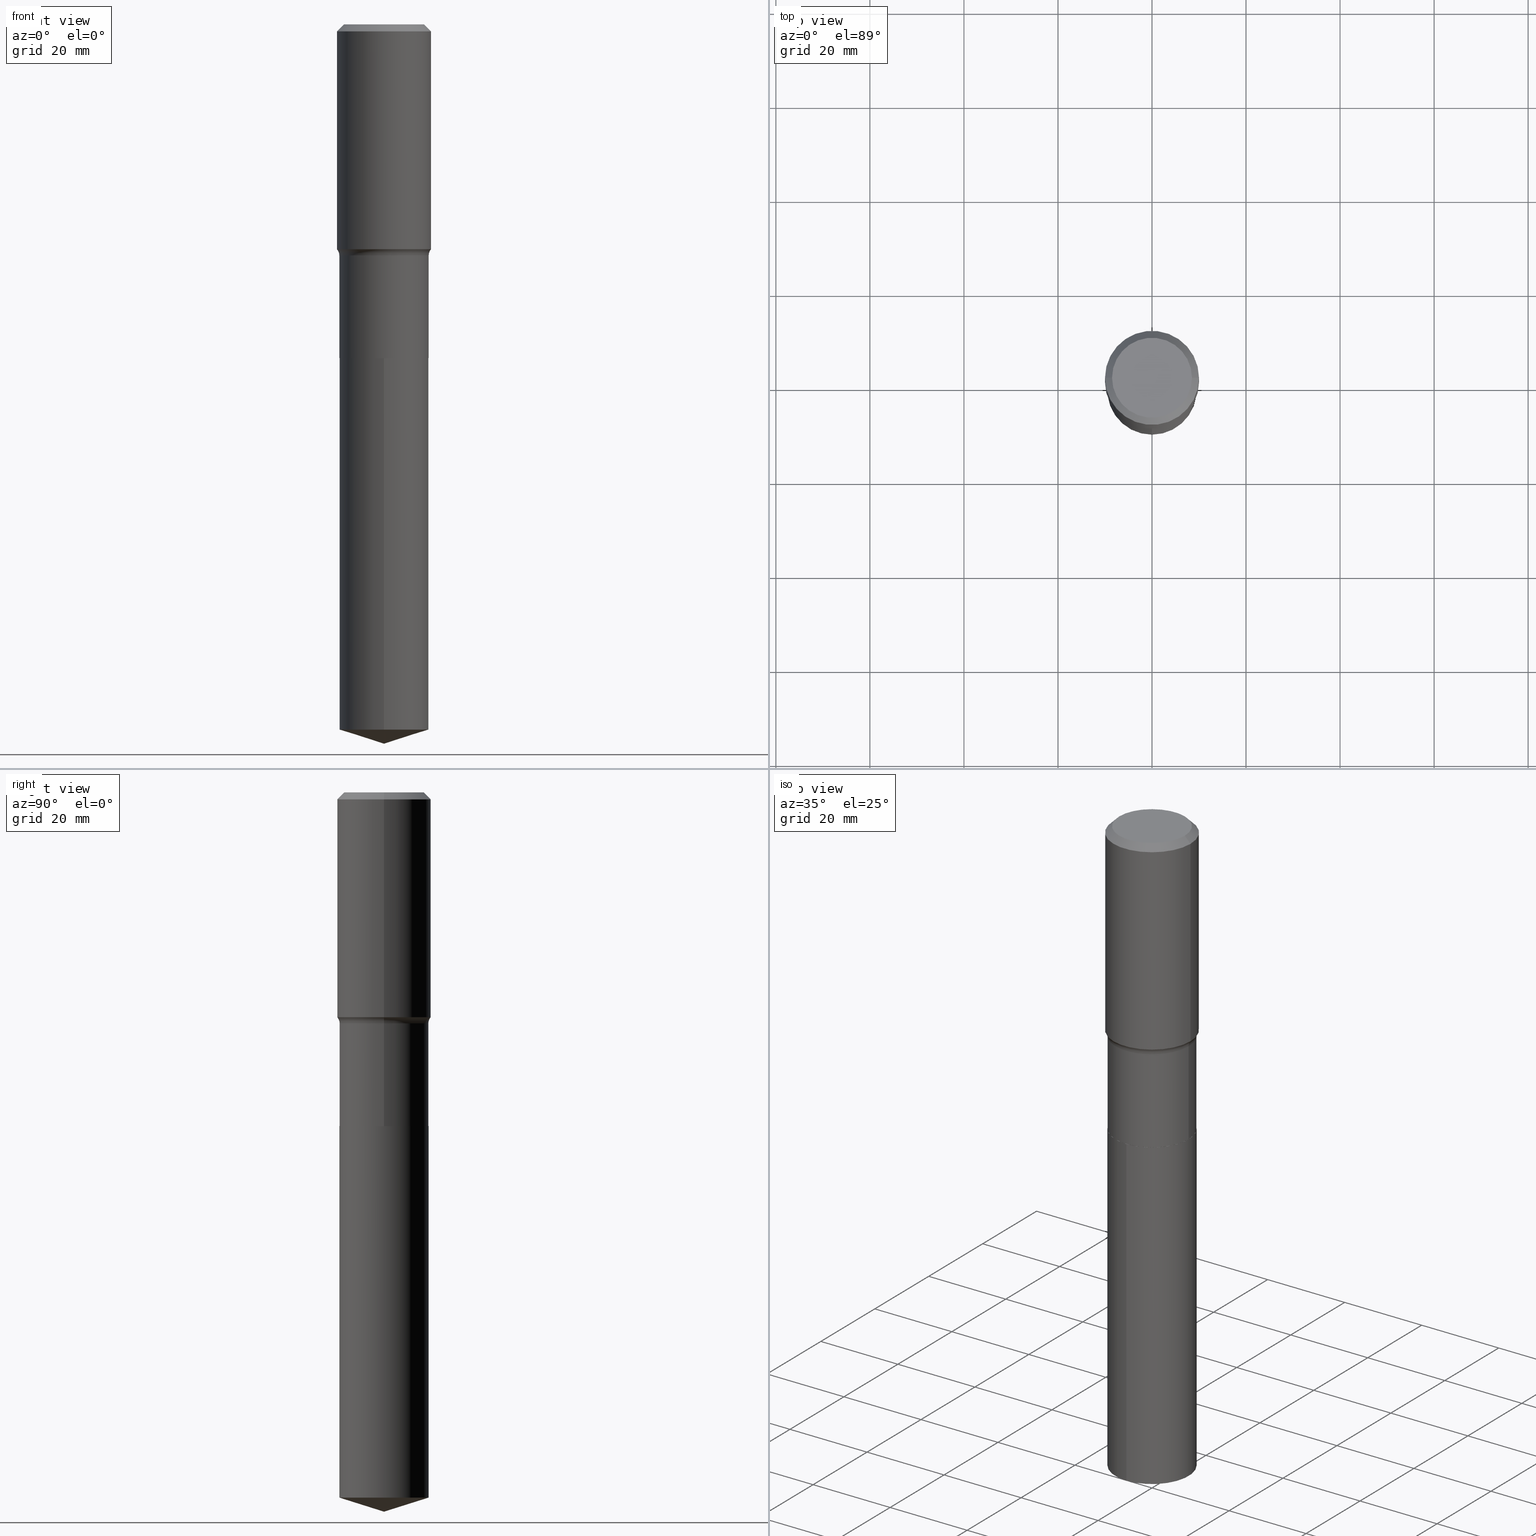
[diagram: canonical four-view strip — front | top / right | iso, engineering-drawing reading convention]
A machine part, canonical four-view strip (front | top / right | iso — engineering-drawing reading convention). The complete STEP part file that produces these views, byte-faithful:
ISO-10303-21;
HEADER;
FILE_DESCRIPTION (( 'STEP AP203' ),
    '1' );
FILE_NAME ('64210.STEP',
    '2024-04-19T15:37:57',
    ( '' ),
    ( '' ),
    'SwSTEP 2.0',
    'SolidWorks 2023',
    '' );
FILE_SCHEMA (( 'CONFIG_CONTROL_DESIGN' ));
ENDSEC;

DATA;
#1 = ORIENTED_EDGE ( 'NONE', *, *, #283, .T. ) ;
#2 = ADVANCED_FACE ( 'NONE', ( #413 ), #217, .T. ) ;
#3 = EDGE_CURVE ( 'NONE', #307, #82, #288, .T. ) ;
#4 = CARTESIAN_POINT ( 'NONE',  ( 4.605262722311822857E-29, -6.575094646373675115E-15, -1.883181952950732985 ) ) ;
#5 = ORIENTED_EDGE ( 'NONE', *, *, #34, .F. ) ;
#6 = PERSON_AND_ORGANIZATION ( #385, #102 ) ;
#7 = AXIS2_PLACEMENT_3D ( 'NONE', #421, #197, #308 ) ;
#8 = PRODUCT_DEFINITION_FORMATION_WITH_SPECIFIED_SOURCE ( 'ANY', '', #28, .NOT_KNOWN. ) ;
#9 = ORIENTED_EDGE ( 'NONE', *, *, #463, .F. ) ;
#10 = DIRECTION ( 'NONE',  ( -0.7071067811867889352, 7.493145998871226640E-15, 0.7071067811863060992 ) ) ;
#11 = CALENDAR_DATE ( 2024, 19, 4 ) ;
#12 = ORIENTED_EDGE ( 'NONE', *, *, #449, .T. ) ;
#13 = APPROVAL_STATUS ( 'not_yet_approved' ) ;
#14 = FACE_OUTER_BOUND ( 'NONE', #139, .T. ) ;
#15 = ORIENTED_EDGE ( 'NONE', *, *, #34, .T. ) ;
#16 = CIRCLE ( 'NONE', #113, 0.3937000000000000499 ) ;
#17 = AXIS2_PLACEMENT_3D ( 'NONE', #111, #467, #56 ) ;
#18 = ORIENTED_EDGE ( 'NONE', *, *, #294, .F. ) ;
#19 = CARTESIAN_POINT ( 'NONE',  ( 1.444171603492640496E-30, -2.061894304653831246E-16, -0.05905500000000032945 ) ) ;
#20 = LINE ( 'NONE', #284, #118 ) ;
#21 = SECURITY_CLASSIFICATION_LEVEL ( 'unclassified' ) ;
#22 = CC_DESIGN_DATE_AND_TIME_ASSIGNMENT ( #38, #396, ( #40 ) ) ;
#23 = EDGE_CURVE ( 'NONE', #255, #348, #290, .T. ) ;
#24 =( LENGTH_UNIT ( ) NAMED_UNIT ( * ) SI_UNIT ( $, .METRE. ) );
#25 = DIRECTION ( 'NONE',  ( -2.445468806185136597E-29, 3.491481338843145583E-15, 1.000000000000000000 ) ) ;
#26 = VECTOR ( 'NONE', #114, 39.37007874015748143 ) ;
#27 = DIRECTION ( 'NONE',  ( -2.445468806185136597E-29, 3.491481338843145583E-15, 1.000000000000000000 ) ) ;
#28 = PRODUCT ( '64210', '64210', '', ( #350 ) ) ;
#29 = CIRCLE ( 'NONE', #436, 0.3346450000000000258 ) ;
#30 = EDGE_LOOP ( 'NONE', ( #237, #301, #461, #394 ) ) ;
#31 = DIRECTION ( 'NONE',  ( 1.000000000000000000, -6.982962677686267499E-15, 0.000000000000000000 ) ) ;
#32 = DIRECTION ( 'NONE',  ( -2.438088387897960049E-29, 3.491481338843145188E-15, 1.000000000000000000 ) ) ;
#33 = ORIENTED_EDGE ( 'NONE', *, *, #186, .T. ) ;
#34 = EDGE_CURVE ( 'NONE', #97, #82, #16, .T. ) ;
#35 = LINE ( 'NONE', #410, #236 ) ;
#36 = AXIS2_PLACEMENT_3D ( 'NONE', #321, #74, #251 ) ;
#37 = TOROIDAL_SURFACE ( 'NONE', #312, 0.4519999999999998463, 0.07799999999999999989 ) ;
#38 = DATE_AND_TIME ( #434, #165 ) ;
#39 = CARTESIAN_POINT ( 'NONE',  ( 0.3735000000000000542, -1.236752519845017793E-14, -2.795199999999999019 ) ) ;
#40 = PRODUCT_DEFINITION ( 'UNKNOWN', '', #8, #381 ) ;
#41 = EDGE_CURVE ( 'NONE', #199, #149, #345, .T. ) ;
#42 = DIRECTION ( 'NONE',  ( -2.445468806185136597E-29, 3.491481338843145583E-15, 1.000000000000000000 ) ) ;
#43 = DIRECTION ( 'NONE',  ( -6.982962677686266711E-15, -1.000000000000000000, 2.921762560068730595E-15 ) ) ;
#44 = CIRCLE ( 'NONE', #202, 0.3739999999999998881 ) ;
#45 = CIRCLE ( 'NONE', #204, 0.07799999999999995826 ) ;
#46 = DIRECTION ( 'NONE',  ( -2.445468806185136597E-29, 3.491481338843145583E-15, 1.000000000000000000 ) ) ;
#47 = PERSON_AND_ORGANIZATION_ROLE ( 'design_owner' ) ;
#48 = CC_DESIGN_PERSON_AND_ORGANIZATION_ASSIGNMENT ( #281, #173, ( #325 ) ) ;
#49 = CARTESIAN_POINT ( 'NONE',  ( 6.835574407048694043E-29, -9.759388638334360093E-15, -2.795199999999999907 ) ) ;
#50 = LINE ( 'NONE', #432, #491 ) ;
#51 = ORIENTED_EDGE ( 'NONE', *, *, #298, .T. ) ;
#52 = EDGE_LOOP ( 'NONE', ( #201, #71, #414, #18 ) ) ;
#53 = APPROVAL_PERSON_ORGANIZATION ( #244, #68, #207 ) ;
#54 = AXIS2_PLACEMENT_3D ( 'NONE', #59, #242, #142 ) ;
#55 = CARTESIAN_POINT ( 'NONE',  ( 0.000000000000000000, 0.000000000000000000, 0.000000000000000000 ) ) ;
#56 = DIRECTION ( 'NONE',  ( 1.000000000000000000, -6.982962677686265922E-15, 0.000000000000000000 ) ) ;
#57 = PERSON_AND_ORGANIZATION ( #385, #102 ) ;
#58 = ORIENTED_EDGE ( 'NONE', *, *, #23, .F. ) ;
#59 = CARTESIAN_POINT ( 'NONE',  ( -8.153525768971819026E-28, 1.164465316690767044E-13, 33.34647874015747959 ) ) ;
#60 = CARTESIAN_POINT ( 'NONE',  ( -0.3735000000000000542, -7.102862293096273524E-15, -2.795199999999999019 ) ) ;
#61 = ORIENTED_EDGE ( 'NONE', *, *, #116, .F. ) ;
#62 = CARTESIAN_POINT ( 'NONE',  ( 0.3937000000000002164, -9.324287052578759121E-15, -1.883181952950732985 ) ) ;
#63 = EDGE_LOOP ( 'NONE', ( #250, #92, #190, #192 ) ) ;
#64 = AXIS2_PLACEMENT_3D ( 'NONE', #137, #362, #212 ) ;
#65 = EDGE_CURVE ( 'NONE', #224, #193, #44, .T. ) ;
#66 = DIRECTION ( 'NONE',  ( -2.445468806185136597E-29, 3.491481338843145583E-15, 1.000000000000000000 ) ) ;
#67 = APPROVAL_STATUS ( 'not_yet_approved' ) ;
#68 = APPROVAL ( #67, 'UNSPECIFIED' ) ;
#69 = CYLINDRICAL_SURFACE ( 'NONE', #178, 0.3937000000000001054 ) ;
#70 = DIRECTION ( 'NONE',  ( 1.000000000000000000, -6.982962677686265922E-15, 0.000000000000000000 ) ) ;
#71 = ORIENTED_EDGE ( 'NONE', *, *, #357, .T. ) ;
#72 = CARTESIAN_POINT ( 'NONE',  ( 1.444107478817764041E-28, -2.062110796612896083E-14, -5.905678252959260632 ) ) ;
#73 = AXIS2_PLACEMENT_3D ( 'NONE', #314, #175, #484 ) ;
#74 = DIRECTION ( 'NONE',  ( 2.438088387897960049E-29, -3.491481338843145188E-15, -1.000000000000000000 ) ) ;
#75 = DIRECTION ( 'NONE',  ( -2.445468806185136877E-29, 3.491481338843145188E-15, 1.000000000000000000 ) ) ;
#76 = EDGE_LOOP ( 'NONE', ( #469, #356, #339 ) ) ;
#77 = MANIFOLD_SOLID_BREP ( 'Body-Move/Copy2[1]', #334 ) ;
#78 = LINE ( 'NONE', #490, #407 ) ;
#79 = EDGE_CURVE ( 'NONE', #348, #97, #487, .T. ) ;
#80 = LOCAL_TIME ( 11, 37, 57.00000000000000000, #352 ) ;
#81 = EDGE_CURVE ( 'NONE', #123, #278, #152, .T. ) ;
#82 = VERTEX_POINT ( 'NONE', #452 ) ;
#83 = CARTESIAN_POINT ( 'NONE',  ( 4.731982139968239830E-29, -6.756016390661487024E-15, -1.935000000000000053 ) ) ;
#84 = LINE ( 'NONE', #86, #101 ) ;
#85 =( GEOMETRIC_REPRESENTATION_CONTEXT ( 3 ) GLOBAL_UNCERTAINTY_ASSIGNED_CONTEXT ( ( #87 ) ) GLOBAL_UNIT_ASSIGNED_CONTEXT ( ( #477, #368, #138 ) ) REPRESENTATION_CONTEXT ( 'NONE', 'WORKASPACE' ) );
#86 = CARTESIAN_POINT ( 'NONE',  ( 2.657429831742842925E-15, 0.3739999999999902847, -2.795200000000000795 ) ) ;
#87 = UNCERTAINTY_MEASURE_WITH_UNIT (LENGTH_MEASURE( 1.000000000000000082E-05 ), #477, 'distance_accuracy_value', 'NONE');
#88 = CARTESIAN_POINT ( 'NONE',  ( 0.3739999999999999436, -2.611628041454663213E-15, 1.823690114147679661E-29 ) ) ;
#89 = EDGE_LOOP ( 'NONE', ( #309, #164, #359, #131 ) ) ;
#90 = DIRECTION ( 'NONE',  ( -2.445468806185136597E-29, 3.491481338843145583E-15, 1.000000000000000000 ) ) ;
#91 = ORIENTED_EDGE ( 'NONE', *, *, #218, .T. ) ;
#92 = ORIENTED_EDGE ( 'NONE', *, *, #240, .T. ) ;
#93 = CONICAL_SURFACE ( 'NONE', #340, 0.3735000000000000542, 0.7853981633977896726 ) ;
#94 = AXIS2_PLACEMENT_3D ( 'NONE', #403, #103, #132 ) ;
#95 = EDGE_LOOP ( 'NONE', ( #1, #33 ) ) ;
#96 = PERSON_AND_ORGANIZATION ( #385, #102 ) ;
#97 = VERTEX_POINT ( 'NONE', #256 ) ;
#98 = EDGE_CURVE ( 'NONE', #277, #97, #35, .T. ) ;
#99 = DIRECTION ( 'NONE',  ( 1.000000000000000000, -6.982962677686265922E-15, 4.876176775795935793E-29 ) ) ;
#100 = DATE_TIME_ROLE ( 'classification_date' ) ;
#101 = VECTOR ( 'NONE', #227, 39.37007874015748143 ) ;
#102 = ORGANIZATION ( 'UNSPECIFIED', 'UNSPECIFIED', '' ) ;
#103 = DIRECTION ( 'NONE',  ( 2.445468806185136597E-29, -3.491481338843145583E-15, -1.000000000000000000 ) ) ;
#104 = FACE_OUTER_BOUND ( 'NONE', #128, .T. ) ;
#105 = EDGE_LOOP ( 'NONE', ( #275, #425, #440, #387 ) ) ;
#106 = DIMENSIONAL_EXPONENTS ( 1.000000000000000000, 0.000000000000000000, 0.000000000000000000, 0.000000000000000000, 0.000000000000000000, 0.000000000000000000, 0.000000000000000000 ) ;
#107 = DIRECTION ( 'NONE',  ( -6.982962677686266711E-15, -1.000000000000000000, 2.921762560068730595E-15 ) ) ;
#108 = DIRECTION ( 'NONE',  ( 1.000000000000000000, -6.982962677686261977E-15, 0.000000000000000000 ) ) ;
#109 = PLANE ( 'NONE',  #36 ) ;
#110 = DIRECTION ( 'NONE',  ( -2.445122506126892238E-29, 3.491977260236726603E-15, 1.000000000000000000 ) ) ;
#111 = CARTESIAN_POINT ( 'NONE',  ( 6.835574407048691801E-29, -9.759388638334358515E-15, -2.795199999999999019 ) ) ;
#112 = DIRECTION ( 'NONE',  ( -1.000000000000000000, 7.105427357601001859E-15, 0.000000000000000000 ) ) ;
#113 = AXIS2_PLACEMENT_3D ( 'NONE', #293, #25, #450 ) ;
#114 = DIRECTION ( 'NONE',  ( -0.7071067811865454633, 2.468850131082235367E-15, -0.7071067811865495711 ) ) ;
#115 = DIRECTION ( 'NONE',  ( -2.445122506126892238E-29, 3.491977260236726603E-15, 1.000000000000000000 ) ) ;
#116 = EDGE_CURVE ( 'NONE', #255, #82, #291, .T. ) ;
#117 = EDGE_CURVE ( 'NONE', #199, #168, #78, .T. ) ;
#118 = VECTOR ( 'NONE', #328, 39.37007874015748143 ) ;
#119 = APPROVAL_DATE_TIME ( #221, #68 ) ;
#120 = CARTESIAN_POINT ( 'NONE',  ( 6.835574407048694043E-29, -9.759388638334360093E-15, -2.795199999999999907 ) ) ;
#121 = CARTESIAN_POINT ( 'NONE',  ( 6.835574407048691801E-29, -9.759388638334358515E-15, -2.795199999999999019 ) ) ;
#122 = VECTOR ( 'NONE', #327, 39.37007874015748143 ) ;
#123 = VERTEX_POINT ( 'NONE', #219 ) ;
#124 = AXIS2_PLACEMENT_3D ( 'NONE', #276, #90, #355 ) ;
#125 = CARTESIAN_POINT ( 'NONE',  ( 6.835574407048694043E-29, -9.759388638334360093E-15, -2.795199999999999907 ) ) ;
#126 = DIRECTION ( 'NONE',  ( 0.000000000000000000, 0.000000000000000000, 1.000000000000000000 ) ) ;
#127 = DIRECTION ( 'NONE',  ( -2.445468806185136877E-29, 3.491481338843145188E-15, 1.000000000000000000 ) ) ;
#128 = EDGE_LOOP ( 'NONE', ( #183, #9 ) ) ;
#129 = ADVANCED_FACE ( 'NONE', ( #373 ), #296, .T. ) ;
#130 = ADVANCED_FACE ( 'NONE', ( #419 ), #93, .T. ) ;
#131 = ORIENTED_EDGE ( 'NONE', *, *, #117, .F. ) ;
#132 = DIRECTION ( 'NONE',  ( -1.000000000000000000, 6.982962677686265922E-15, 0.000000000000000000 ) ) ;
#133 = EDGE_LOOP ( 'NONE', ( #433, #171, #341, #220 ) ) ;
#134 = AXIS2_PLACEMENT_3D ( 'NONE', #125, #270, #486 ) ;
#135 = EDGE_CURVE ( 'NONE', #149, #369, #84, .T. ) ;
#136 = CIRCLE ( 'NONE', #73, 0.3937000000000002164 ) ;
#137 = CARTESIAN_POINT ( 'NONE',  ( 6.834351672645601242E-29, -9.757642897664937800E-15, -2.794699999999999740 ) ) ;
#138 =( NAMED_UNIT ( * ) SI_UNIT ( $, .STERADIAN. ) SOLID_ANGLE_UNIT ( ) );
#139 = EDGE_LOOP ( 'NONE', ( #429, #420, #5, #471 ) ) ;
#140 = DATE_AND_TIME ( #388, #377 ) ;
#141 = CC_DESIGN_PERSON_AND_ORGANIZATION_ASSIGNMENT ( #233, #47, ( #28 ) ) ;
#142 = DIRECTION ( 'NONE',  ( -6.982962677686265922E-15, -1.000000000000000000, 3.500519750498711532E-15 ) ) ;
#143 = DIRECTION ( 'NONE',  ( -2.445468806185136597E-29, 3.491481338843145583E-15, 1.000000000000000000 ) ) ;
#144 = COORDINATED_UNIVERSAL_TIME_OFFSET ( 5, 0, .BEHIND. ) ;
#145 = FACE_OUTER_BOUND ( 'NONE', #52, .T. ) ;
#146 = AXIS2_PLACEMENT_3D ( 'NONE', #120, #262, #43 ) ;
#147 = CC_DESIGN_APPROVAL ( #157, ( #8 ) ) ;
#148 = FACE_OUTER_BOUND ( 'NONE', #166, .T. ) ;
#149 = VERTEX_POINT ( 'NONE', #162 ) ;
#150 = DIRECTION ( 'NONE',  ( -2.445468806185136597E-29, 3.491481338843145583E-15, 1.000000000000000000 ) ) ;
#151 = CARTESIAN_POINT ( 'NONE',  ( 1.473039285979910879E-28, -2.103150182580327176E-14, -6.023600000000000065 ) ) ;
#152 = LINE ( 'NONE', #39, #456 ) ;
#153 = DIRECTION ( 'NONE',  ( -2.445468806185136877E-29, 3.491481338843145188E-15, 1.000000000000000000 ) ) ;
#154 = AXIS2_PLACEMENT_3D ( 'NONE', #55, #126, #430 ) ;
#155 = ADVANCED_FACE ( 'NONE', ( #302 ), #462, .T. ) ;
#156 = CARTESIAN_POINT ( 'NONE',  ( -8.153525768971819026E-28, 1.164465316690767044E-13, 33.34647874015747959 ) ) ;
#157 = APPROVAL ( #347, 'UNSPECIFIED' ) ;
#158 = DIRECTION ( 'NONE',  ( -2.445468806185136597E-29, 3.491481338843145583E-15, 1.000000000000000000 ) ) ;
#159 = AXIS2_PLACEMENT_3D ( 'NONE', #424, #351, #274 ) ;
#160 = CARTESIAN_POINT ( 'NONE',  ( 0.3739999999999998881, -9.367644432116149448E-15, -1.935000000000000053 ) ) ;
#161 = CYLINDRICAL_SURFACE ( 'NONE', #124, 0.3937000000000001054 ) ;
#162 = CARTESIAN_POINT ( 'NONE',  ( 2.657429831742921023E-15, 0.3739999999999796265, -5.905678252959261521 ) ) ;
#163 = TOROIDAL_SURFACE ( 'NONE', #444, 0.4519999999999998463, 0.07799999999999999989 ) ;
#164 = ORIENTED_EDGE ( 'NONE', *, *, #135, .T. ) ;
#165 = LOCAL_TIME ( 11, 37, 57.00000000000000000, #306 ) ;
#166 = EDGE_LOOP ( 'NONE', ( #353, #58, #311, #389 ) ) ;
#167 = DATE_AND_TIME ( #11, #80 ) ;
#168 = VERTEX_POINT ( 'NONE', #213 ) ;
#169 = ORIENTED_EDGE ( 'NONE', *, *, #422, .F. ) ;
#170 = DIRECTION ( 'NONE',  ( 1.000000000000000000, -6.982962677686266711E-15, 4.876176775795935793E-29 ) ) ;
#171 = ORIENTED_EDGE ( 'NONE', *, *, #478, .T. ) ;
#172 = CARTESIAN_POINT ( 'NONE',  ( 4.731982139968239830E-29, -6.756016390661487024E-15, -1.935000000000000053 ) ) ;
#173 = PERSON_AND_ORGANIZATION_ROLE ( 'classification_officer' ) ;
#174 = CARTESIAN_POINT ( 'NONE',  ( 6.835574407048691801E-29, -9.759388638334358515E-15, -2.795199999999999019 ) ) ;
#175 = DIRECTION ( 'NONE',  ( -2.445468806185136597E-29, 3.491481338843145583E-15, 1.000000000000000000 ) ) ;
#176 = AXIS2_PLACEMENT_3D ( 'NONE', #333, #110, #177 ) ;
#177 = DIRECTION ( 'NONE',  ( -6.982962677686266711E-15, -1.000000000000000000, 2.921762560068730595E-15 ) ) ;
#178 = AXIS2_PLACEMENT_3D ( 'NONE', #249, #27, #170 ) ;
#179 = CC_DESIGN_PERSON_AND_ORGANIZATION_ASSIGNMENT ( #96, #267, ( #8 ) ) ;
#180 = CARTESIAN_POINT ( 'NONE',  ( -1.001697619218024707E-46, 1.430158722866394097E-32, 4.096137381448120692E-18 ) ) ;
#181 = CARTESIAN_POINT ( 'NONE',  ( -1.001697619218024707E-46, 1.430158722866394097E-32, 4.096137381448120692E-18 ) ) ;
#182 = DIRECTION ( 'NONE',  ( 7.105427357601001859E-15, 1.000000000000000000, -3.491481338843145583E-15 ) ) ;
#183 = ORIENTED_EDGE ( 'NONE', *, *, #298, .F. ) ;
#184 = EDGE_CURVE ( 'NONE', #474, #149, #269, .T. ) ;
#185 = CARTESIAN_POINT ( 'NONE',  ( 0.000000000000000000, 0.000000000000000000, 0.000000000000000000 ) ) ;
#186 = EDGE_CURVE ( 'NONE', #369, #168, #488, .T. ) ;
#187 = CC_DESIGN_DATE_AND_TIME_ASSIGNMENT ( #319, #100, ( #325 ) ) ;
#188 = VECTOR ( 'NONE', #127, 39.37007874015748143 ) ;
#189 = CARTESIAN_POINT ( 'NONE',  ( -0.3937000000000000499, 2.543002975739700240E-15, -0.05905500000000032945 ) ) ;
#190 = ORIENTED_EDGE ( 'NONE', *, *, #361, .T. ) ;
#191 = APPLICATION_PROTOCOL_DEFINITION ( 'international standard', 'config_control_design', 1994, #260 ) ;
#192 = ORIENTED_EDGE ( 'NONE', *, *, #218, .F. ) ;
#193 = VERTEX_POINT ( 'NONE', #378 ) ;
#194 = PRODUCT_RELATED_PRODUCT_CATEGORY ( 'detail', '', ( #28 ) ) ;
#195 = CIRCLE ( 'NONE', #64, 0.3739999999999999991 ) ;
#196 = EDGE_LOOP ( 'NONE', ( #51, #234, #169, #216 ) ) ;
#197 = DIRECTION ( 'NONE',  ( -2.445468806185136597E-29, 3.491481338843145583E-15, 1.000000000000000000 ) ) ;
#198 = PERSON_AND_ORGANIZATION ( #385, #102 ) ;
#199 = VERTEX_POINT ( 'NONE', #409 ) ;
#200 = DIRECTION ( 'NONE',  ( -2.445468806185136597E-29, 3.491481338843145583E-15, 1.000000000000000000 ) ) ;
#201 = ORIENTED_EDGE ( 'NONE', *, *, #3, .F. ) ;
#202 = AXIS2_PLACEMENT_3D ( 'NONE', #415, #252, #31 ) ;
#203 = ADVANCED_BREP_SHAPE_REPRESENTATION ( '64210', ( #77, #261, #154 ), #85 ) ;
#204 = AXIS2_PLACEMENT_3D ( 'NONE', #406, #405, #108 ) ;
#205 = APPROVAL_PERSON_ORGANIZATION ( #198, #465, #472 ) ;
#206 = DIRECTION ( 'NONE',  ( 1.000000000000000000, -6.982962677686265133E-15, 0.000000000000000000 ) ) ;
#207 = APPROVAL_ROLE ( '' ) ;
#208 = CARTESIAN_POINT ( 'NONE',  ( 6.835574407048694043E-29, -9.759388638334360093E-15, -2.795199999999999907 ) ) ;
#209 = DIRECTION ( 'NONE',  ( 1.000000000000000000, -6.982962677686267499E-15, 4.876152824003125403E-29 ) ) ;
#210 = ADVANCED_FACE ( 'NONE', ( #326 ), #109, .F. ) ;
#211 = ADVANCED_FACE ( 'NONE', ( #330 ), #163, .F. ) ;
#212 = DIRECTION ( 'NONE',  ( 1.000000000000000000, -6.982962677686265133E-15, 0.000000000000000000 ) ) ;
#213 = CARTESIAN_POINT ( 'NONE',  ( -2.611628041454595371E-15, -0.3740000000000097691, -2.795199999999998575 ) ) ;
#214 = AXIS2_PLACEMENT_3D ( 'NONE', #400, #215, #206 ) ;
#215 = DIRECTION ( 'NONE',  ( -2.445468806185136597E-29, 3.491481338843145583E-15, 1.000000000000000000 ) ) ;
#216 = ORIENTED_EDGE ( 'NONE', *, *, #81, .F. ) ;
#217 = CYLINDRICAL_SURFACE ( 'NONE', #370, 0.3739999999999999436 ) ;
#218 = EDGE_CURVE ( 'NONE', #193, #224, #222, .T. ) ;
#219 = CARTESIAN_POINT ( 'NONE',  ( 0.3735000000000000542, -1.236752519845017793E-14, -2.795199999999999019 ) ) ;
#220 = ORIENTED_EDGE ( 'NONE', *, *, #361, .F. ) ;
#221 = DATE_AND_TIME ( #417, #455 ) ;
#222 = CIRCLE ( 'NONE', #7, 0.3739999999999998881 ) ;
#223 = AXIS2_PLACEMENT_3D ( 'NONE', #72, #280, #438 ) ;
#224 = VERTEX_POINT ( 'NONE', #160 ) ;
#225 = DIRECTION ( 'NONE',  ( 1.000000000000000000, -6.982962677686265922E-15, 4.883557194083112901E-29 ) ) ;
#226 = AXIS2_PLACEMENT_3D ( 'NONE', #445, #182, #112 ) ;
#227 = DIRECTION ( 'NONE',  ( -2.445122506126892238E-29, 3.491977260236726997E-15, 1.000000000000000000 ) ) ;
#228 = ADVANCED_FACE ( 'NONE', ( #382 ), #492, .T. ) ;
#229 = FACE_OUTER_BOUND ( 'NONE', #243, .T. ) ;
#230 = ADVANCED_FACE ( 'NONE', ( #299 ), #239, .T. ) ;
#231 = PERSON_AND_ORGANIZATION ( #385, #102 ) ;
#232 = ORIENTED_EDGE ( 'NONE', *, *, #391, .T. ) ;
#233 = PERSON_AND_ORGANIZATION ( #385, #102 ) ;
#234 = ORIENTED_EDGE ( 'NONE', *, *, #316, .T. ) ;
#235 = PERSON_AND_ORGANIZATION_ROLE ( 'creator' ) ;
#236 = VECTOR ( 'NONE', #153, 39.37007874015748143 ) ;
#237 = ORIENTED_EDGE ( 'NONE', *, *, #316, .F. ) ;
#238 = APPLICATION_CONTEXT ( 'configuration controlled 3d designs of mechanical parts and assemblies' ) ;
#239 = CYLINDRICAL_SURFACE ( 'NONE', #480, 0.3739999999999999436 ) ;
#240 = EDGE_CURVE ( 'NONE', #393, #278, #195, .T. ) ;
#241 = EDGE_LOOP ( 'NONE', ( #268, #232, #91, #423 ) ) ;
#242 = DIRECTION ( 'NONE',  ( -2.445122506126892238E-29, 3.491977260236726603E-15, 1.000000000000000000 ) ) ;
#243 = EDGE_LOOP ( 'NONE', ( #331, #375, #15, #61 ) ) ;
#244 = PERSON_AND_ORGANIZATION ( #385, #102 ) ;
#245 = AXIS2_PLACEMENT_3D ( 'NONE', #332, #336, #292 ) ;
#246 = CIRCLE ( 'NONE', #223, 0.3739999999999999991 ) ;
#247 = FACE_OUTER_BOUND ( 'NONE', #437, .T. ) ;
#248 = DIRECTION ( 'NONE',  ( 1.000000000000000000, -6.982962677686265922E-15, 0.000000000000000000 ) ) ;
#249 = CARTESIAN_POINT ( 'NONE',  ( 0.000000000000000000, 0.000000000000000000, 0.000000000000000000 ) ) ;
#250 = ORIENTED_EDGE ( 'NONE', *, *, #478, .F. ) ;
#251 = DIRECTION ( 'NONE',  ( -1.000000000000000000, 6.982962677686265922E-15, -4.876176775795935793E-29 ) ) ;
#252 = DIRECTION ( 'NONE',  ( -2.445468806185136597E-29, 3.491481338843145583E-15, 1.000000000000000000 ) ) ;
#253 = DIRECTION ( 'NONE',  ( -2.445468806185136877E-29, 3.491481338843145188E-15, 1.000000000000000000 ) ) ;
#254 = CIRCLE ( 'NONE', #346, 0.3937000000000002164 ) ;
#255 = VERTEX_POINT ( 'NONE', #447 ) ;
#256 = CARTESIAN_POINT ( 'NONE',  ( 0.3937000000000000499, -2.955381836670466588E-15, -0.05905500000000032945 ) ) ;
#257 = ORIENTED_EDGE ( 'NONE', *, *, #412, .F. ) ;
#258 = CONICAL_SURFACE ( 'NONE', #94, 0.3937000000000000499, 0.7853981633974453924 ) ;
#259 = ADVANCED_FACE ( 'NONE', ( #148 ), #258, .T. ) ;
#260 = APPLICATION_CONTEXT ( 'configuration controlled 3d designs of mechanical parts and assemblies' ) ;
#261 = MANIFOLD_SOLID_BREP ( 'Body-Move/Copy2[2]', #416 ) ;
#262 = DIRECTION ( 'NONE',  ( -2.445122506126892238E-29, 3.491977260236726603E-15, 1.000000000000000000 ) ) ;
#263 = SHAPE_DEFINITION_REPRESENTATION ( #371, #203 ) ;
#264 = ORIENTED_EDGE ( 'NONE', *, *, #395, .F. ) ;
#265 = ADVANCED_FACE ( 'NONE', ( #313 ), #408, .T. ) ;
#266 = DIRECTION ( 'NONE',  ( 1.000000000000000000, -6.982962677686265133E-15, 0.000000000000000000 ) ) ;
#267 = PERSON_AND_ORGANIZATION_ROLE ( 'creator' ) ;
#268 = ORIENTED_EDGE ( 'NONE', *, *, #357, .F. ) ;
#269 = LINE ( 'NONE', #151, #399 ) ;
#270 = DIRECTION ( 'NONE',  ( -2.445122506126892238E-29, 3.491977260236726603E-15, 1.000000000000000000 ) ) ;
#271 = CARTESIAN_POINT ( 'NONE',  ( 2.657429831742919050E-15, 0.3739999999999902847, -2.795200000000000795 ) ) ;
#272 = ORIENTED_EDGE ( 'NONE', *, *, #23, .T. ) ;
#273 = APPLICATION_PROTOCOL_DEFINITION ( 'international standard', 'config_control_design', 1994, #238 ) ;
#274 = DIRECTION ( 'NONE',  ( -1.000000000000000000, 6.982962677686265922E-15, 0.000000000000000000 ) ) ;
#275 = ORIENTED_EDGE ( 'NONE', *, *, #135, .F. ) ;
#276 = CARTESIAN_POINT ( 'NONE',  ( 0.000000000000000000, 0.000000000000000000, 0.000000000000000000 ) ) ;
#277 = VERTEX_POINT ( 'NONE', #62 ) ;
#278 = VERTEX_POINT ( 'NONE', #287 ) ;
#279 = DIRECTION ( 'NONE',  ( -2.445122506126892238E-29, 3.491977260236726603E-15, 1.000000000000000000 ) ) ;
#280 = DIRECTION ( 'NONE',  ( -2.445122506126892238E-29, 3.491977260236726603E-15, 1.000000000000000000 ) ) ;
#281 = PERSON_AND_ORGANIZATION ( #385, #102 ) ;
#282 = CARTESIAN_POINT ( 'NONE',  ( 0.000000000000000000, 0.000000000000000000, 0.000000000000000000 ) ) ;
#283 = EDGE_CURVE ( 'NONE', #168, #369, #401, .T. ) ;
#284 = CARTESIAN_POINT ( 'NONE',  ( 1.472843992790594634E-28, -2.103427422476194638E-14, -6.023600000000000065 ) ) ;
#285 = CC_DESIGN_APPROVAL ( #68, ( #325 ) ) ;
#286 = APPROVAL_PERSON_ORGANIZATION ( #57, #157, #468 ) ;
#287 = CARTESIAN_POINT ( 'NONE',  ( 0.3739999999999999991, -1.236927093911960022E-14, -2.794699999999999740 ) ) ;
#288 = LINE ( 'NONE', #379, #426 ) ;
#289 = DIRECTION ( 'NONE',  ( 0.7071067811867889352, -2.468850131084785360E-15, 0.7071067811863060992 ) ) ;
#290 = CIRCLE ( 'NONE', #324, 0.3346450000000000258 ) ;
#291 = LINE ( 'NONE', #189, #26 ) ;
#292 = DIRECTION ( 'NONE',  ( -6.982962677686266711E-15, -1.000000000000000000, 2.921762560068730595E-15 ) ) ;
#293 = CARTESIAN_POINT ( 'NONE',  ( 1.444171603492640496E-30, -2.061894304653831246E-16, -0.05905500000000032945 ) ) ;
#294 = EDGE_CURVE ( 'NONE', #82, #97, #418, .T. ) ;
#295 = ADVANCED_FACE ( 'NONE', ( #443 ), #446, .T. ) ;
#296 = CONICAL_SURFACE ( 'NONE', #435, 124.8659371009148060, 1.265363707695891016 ) ;
#297 = CONICAL_SURFACE ( 'NONE', #159, 0.3937000000000000499, 0.7853981633974453924 ) ;
#298 = EDGE_CURVE ( 'NONE', #123, #305, #457, .T. ) ;
#299 = FACE_OUTER_BOUND ( 'NONE', #63, .T. ) ;
#300 = DIRECTION ( 'NONE',  ( 6.982962677686265922E-15, 1.000000000000000000, -3.491977260236726997E-15 ) ) ;
#301 = ORIENTED_EDGE ( 'NONE', *, *, #463, .T. ) ;
#302 = FACE_OUTER_BOUND ( 'NONE', #105, .T. ) ;
#303 = VECTOR ( 'NONE', #253, 39.37007874015748143 ) ;
#304 = LOCAL_TIME ( 11, 37, 57.00000000000000000, #144 ) ;
#305 = VERTEX_POINT ( 'NONE', #60 ) ;
#306 = COORDINATED_UNIVERSAL_TIME_OFFSET ( 5, 0, .BEHIND. ) ;
#307 = VERTEX_POINT ( 'NONE', #470 ) ;
#308 = DIRECTION ( 'NONE',  ( 1.000000000000000000, -6.982962677686267499E-15, 0.000000000000000000 ) ) ;
#309 = ORIENTED_EDGE ( 'NONE', *, *, #41, .T. ) ;
#310 = CARTESIAN_POINT ( 'NONE',  ( 0.3346450000000000258, -2.601499422326145188E-15, 4.096137381465387809E-18 ) ) ;
#311 = ORIENTED_EDGE ( 'NONE', *, *, #116, .T. ) ;
#312 = AXIS2_PLACEMENT_3D ( 'NONE', #172, #143, #363 ) ;
#313 = FACE_OUTER_BOUND ( 'NONE', #459, .T. ) ;
#314 = CARTESIAN_POINT ( 'NONE',  ( 4.605262722311822857E-29, -6.575094646373675115E-15, -1.883181952950732985 ) ) ;
#315 = ADVANCED_FACE ( 'NONE', ( #229 ), #297, .T. ) ;
#316 = EDGE_CURVE ( 'NONE', #305, #393, #50, .T. ) ;
#317 = DIRECTION ( 'NONE',  ( 1.000000000000000000, -6.982962677686266711E-15, 4.876176775795935793E-29 ) ) ;
#318 = LENGTH_MEASURE_WITH_UNIT ( LENGTH_MEASURE( 0.02539999999999999897 ), #24 );
#319 = DATE_AND_TIME ( #441, #304 ) ;
#320 = ORIENTED_EDGE ( 'NONE', *, *, #41, .F. ) ;
#321 = CARTESIAN_POINT ( 'NONE',  ( -5.008488096090123536E-47, 7.150793614331970485E-33, 2.048068690724060346E-18 ) ) ;
#322 = DIRECTION ( 'NONE',  ( -2.445468806185136597E-29, 3.491481338843145583E-15, 1.000000000000000000 ) ) ;
#323 = CARTESIAN_POINT ( 'NONE',  ( -0.3739999999999999991, -5.599399812420436934E-15, -2.794699999999999740 ) ) ;
#324 = AXIS2_PLACEMENT_3D ( 'NONE', #181, #158, #485 ) ;
#325 = SECURITY_CLASSIFICATION ( '', '', #21 ) ;
#326 = FACE_OUTER_BOUND ( 'NONE', #431, .T. ) ;
#327 = DIRECTION ( 'NONE',  ( 0.7071067811865454633, -7.319954787623248157E-15, -0.7071067811865495711 ) ) ;
#328 = DIRECTION ( 'NONE',  ( -6.659769872151631300E-15, -0.9537169507482265995, 0.3007057995042744514 ) ) ;
#329 = ORIENTED_EDGE ( 'NONE', *, *, #390, .T. ) ;
#330 = FACE_OUTER_BOUND ( 'NONE', #241, .T. ) ;
#331 = ORIENTED_EDGE ( 'NONE', *, *, #390, .F. ) ;
#332 = CARTESIAN_POINT ( 'NONE',  ( 6.835574407048694043E-29, -9.759388638334360093E-15, -2.795199999999999907 ) ) ;
#333 = CARTESIAN_POINT ( 'NONE',  ( 1.444107478817764041E-28, -2.062110796612896083E-14, -5.905678252959260632 ) ) ;
#334 = CLOSED_SHELL ( 'NONE', ( #228, #265, #129, #155, #349 ) ) ;
#335 = AXIS2_PLACEMENT_3D ( 'NONE', #208, #279, #107 ) ;
#336 = DIRECTION ( 'NONE',  ( -2.445122506126892238E-29, 3.491977260236726603E-15, 1.000000000000000000 ) ) ;
#337 = DIRECTION ( 'NONE',  ( -2.445122506126892238E-29, 3.491977260236726997E-15, 1.000000000000000000 ) ) ;
#338 = ADVANCED_FACE ( 'NONE', ( #14 ), #161, .T. ) ;
#339 = ORIENTED_EDGE ( 'NONE', *, *, #479, .F. ) ;
#340 = AXIS2_PLACEMENT_3D ( 'NONE', #121, #42, #458 ) ;
#341 = ORIENTED_EDGE ( 'NONE', *, *, #65, .F. ) ;
#342 = APPROVAL_DATE_TIME ( #140, #465 ) ;
#343 = DIRECTION ( 'NONE',  ( 2.445122506126891678E-29, -3.491977260236726997E-15, -1.000000000000000000 ) ) ;
#344 = ORIENTED_EDGE ( 'NONE', *, *, #65, .T. ) ;
#345 = CIRCLE ( 'NONE', #176, 0.3739999999999999991 ) ;
#346 = AXIS2_PLACEMENT_3D ( 'NONE', #4, #460, #266 ) ;
#347 = APPROVAL_STATUS ( 'not_yet_approved' ) ;
#348 = VERTEX_POINT ( 'NONE', #310 ) ;
#349 = ADVANCED_FACE ( 'NONE', ( #384 ), #386, .F. ) ;
#350 = MECHANICAL_CONTEXT ( 'NONE', #238, 'mechanical' ) ;
#351 = DIRECTION ( 'NONE',  ( 2.445468806185136597E-29, -3.491481338843145583E-15, -1.000000000000000000 ) ) ;
#352 = COORDINATED_UNIVERSAL_TIME_OFFSET ( 5, 0, .BEHIND. ) ;
#353 = ORIENTED_EDGE ( 'NONE', *, *, #79, .F. ) ;
#354 = DIRECTION ( 'NONE',  ( -2.445468806185136597E-29, 3.491481338843145583E-15, 1.000000000000000000 ) ) ;
#355 = DIRECTION ( 'NONE',  ( 1.000000000000000000, -6.982962677686266711E-15, 4.876176775795935793E-29 ) ) ;
#356 = ORIENTED_EDGE ( 'NONE', *, *, #395, .T. ) ;
#357 = EDGE_CURVE ( 'NONE', #307, #277, #254, .T. ) ;
#358 = PLANE ( 'NONE',  #383 ) ;
#359 = ORIENTED_EDGE ( 'NONE', *, *, #283, .F. ) ;
#360 = CIRCLE ( 'NONE', #214, 0.3739999999999999991 ) ;
#361 = EDGE_CURVE ( 'NONE', #278, #224, #428, .T. ) ;
#362 = DIRECTION ( 'NONE',  ( -2.445468806185136597E-29, 3.491481338843145583E-15, 1.000000000000000000 ) ) ;
#363 = DIRECTION ( 'NONE',  ( 1.000000000000000000, -6.982962677686265922E-15, 4.883557194083112901E-29 ) ) ;
#364 = COORDINATED_UNIVERSAL_TIME_OFFSET ( 5, 0, .BEHIND. ) ;
#365 = CARTESIAN_POINT ( 'NONE',  ( 1.472843992790594634E-28, -2.103427422476194638E-14, -6.023600000000000065 ) ) ;
#366 = DIRECTION ( 'NONE',  ( 6.776566513254256560E-15, 0.9537169507482285979, 0.3007057995042677900 ) ) ;
#367 = DIRECTION ( 'NONE',  ( -2.445468806185136597E-29, 3.491481338843145583E-15, 1.000000000000000000 ) ) ;
#368 =( NAMED_UNIT ( * ) PLANE_ANGLE_UNIT ( ) SI_UNIT ( $, .RADIAN. ) );
#369 = VERTEX_POINT ( 'NONE', #271 ) ;
#370 = AXIS2_PLACEMENT_3D ( 'NONE', #185, #367, #404 ) ;
#371 = PRODUCT_DEFINITION_SHAPE ( 'NONE', 'NONE',  #40 ) ;
#372 = LINE ( 'NONE', #482, #303 ) ;
#373 = FACE_OUTER_BOUND ( 'NONE', #76, .T. ) ;
#374 = CC_DESIGN_PERSON_AND_ORGANIZATION_ASSIGNMENT ( #6, #235, ( #40 ) ) ;
#375 = ORIENTED_EDGE ( 'NONE', *, *, #79, .T. ) ;
#376 = ADVANCED_FACE ( 'NONE', ( #145 ), #69, .T. ) ;
#377 = LOCAL_TIME ( 11, 37, 57.00000000000000000, #398 ) ;
#378 = CARTESIAN_POINT ( 'NONE',  ( -0.3739999999999998881, -5.599399812420438512E-15, -1.935000000000000053 ) ) ;
#379 = CARTESIAN_POINT ( 'NONE',  ( -0.3937000000000001054, 2.797406750687515181E-15, -1.936584745033357016E-29 ) ) ;
#380 = DIRECTION ( 'NONE',  ( -6.982962677686265922E-15, -1.000000000000000000, 3.500519750498711532E-15 ) ) ;
#381 = DESIGN_CONTEXT ( 'detailed design', #260, 'design' ) ;
#382 = FACE_OUTER_BOUND ( 'NONE', #89, .T. ) ;
#383 = AXIS2_PLACEMENT_3D ( 'NONE', #475, #32, #99 ) ;
#384 = FACE_OUTER_BOUND ( 'NONE', #95, .T. ) ;
#385 = PERSON ( 'UNSPECIFIED', 'UNSPECIFIED', 'UNSPECIFIED', ('UNSPECIFIED'), ('UNSPECIFIED'), ('UNSPECIFIED') ) ;
#386 = PLANE ( 'NONE',  #453 ) ;
#387 = ORIENTED_EDGE ( 'NONE', *, *, #186, .F. ) ;
#388 = CALENDAR_DATE ( 2024, 19, 4 ) ;
#389 = ORIENTED_EDGE ( 'NONE', *, *, #294, .T. ) ;
#390 = EDGE_CURVE ( 'NONE', #348, #255, #29, .T. ) ;
#391 = EDGE_CURVE ( 'NONE', #307, #193, #464, .T. ) ;
#392 = AXIS2_PLACEMENT_3D ( 'NONE', #19, #200, #476 ) ;
#393 = VERTEX_POINT ( 'NONE', #323 ) ;
#394 = ORIENTED_EDGE ( 'NONE', *, *, #240, .F. ) ;
#395 = EDGE_CURVE ( 'NONE', #474, #199, #20, .T. ) ;
#396 = DATE_TIME_ROLE ( 'creation_date' ) ;
#397 = ORIENTED_EDGE ( 'NONE', *, *, #391, .F. ) ;
#398 = COORDINATED_UNIVERSAL_TIME_OFFSET ( 5, 0, .BEHIND. ) ;
#399 = VECTOR ( 'NONE', #366, 39.37007874015748143 ) ;
#400 = CARTESIAN_POINT ( 'NONE',  ( 6.834351672645601242E-29, -9.757642897664937800E-15, -2.794699999999999740 ) ) ;
#401 = CIRCLE ( 'NONE', #335, 0.3739999999999999991 ) ;
#402 = PERSON_AND_ORGANIZATION_ROLE ( 'design_supplier' ) ;
#403 = CARTESIAN_POINT ( 'NONE',  ( 1.444171603492640496E-30, -2.061894304653831246E-16, -0.05905500000000032945 ) ) ;
#404 = DIRECTION ( 'NONE',  ( 1.000000000000000000, -6.982962677686266711E-15, 4.876176775795935793E-29 ) ) ;
#405 = DIRECTION ( 'NONE',  ( -6.982962677686266711E-15, -1.000000000000000000, 3.491481338843145583E-15 ) ) ;
#406 = CARTESIAN_POINT ( 'NONE',  ( 0.4519999999999998463, -9.912315520975677494E-15, -1.935000000000000053 ) ) ;
#407 = VECTOR ( 'NONE', #337, 39.37007874015748143 ) ;
#408 = CONICAL_SURFACE ( 'NONE', #54, 124.8659371009148060, 1.265363707695891016 ) ;
#409 = CARTESIAN_POINT ( 'NONE',  ( -2.611628041454520429E-15, -0.3740000000000208713, -5.905678252959259744 ) ) ;
#410 = CARTESIAN_POINT ( 'NONE',  ( 0.3937000000000001054, -2.749192406205084005E-15, 1.919750796630860452E-29 ) ) ;
#411 = ADVANCED_FACE ( 'NONE', ( #104 ), #358, .F. ) ;
#412 = EDGE_CURVE ( 'NONE', #277, #307, #136, .T. ) ;
#413 = FACE_OUTER_BOUND ( 'NONE', #133, .T. ) ;
#414 = ORIENTED_EDGE ( 'NONE', *, *, #98, .T. ) ;
#415 = CARTESIAN_POINT ( 'NONE',  ( 4.731982139968239830E-29, -6.756016390661487024E-15, -1.935000000000000053 ) ) ;
#416 = CLOSED_SHELL ( 'NONE', ( #295, #315, #338, #211, #2, #230, #481, #376, #259, #210, #411, #130 ) ) ;
#417 = CALENDAR_DATE ( 2024, 19, 4 ) ;
#418 = CIRCLE ( 'NONE', #392, 0.3937000000000000499 ) ;
#419 = FACE_OUTER_BOUND ( 'NONE', #30, .T. ) ;
#420 = ORIENTED_EDGE ( 'NONE', *, *, #3, .T. ) ;
#421 = CARTESIAN_POINT ( 'NONE',  ( 4.731982139968239830E-29, -6.756016390661487024E-15, -1.935000000000000053 ) ) ;
#422 = EDGE_CURVE ( 'NONE', #278, #393, #360, .T. ) ;
#423 = ORIENTED_EDGE ( 'NONE', *, *, #449, .F. ) ;
#424 = CARTESIAN_POINT ( 'NONE',  ( 1.444171603492640496E-30, -2.061894304653831246E-16, -0.05905500000000032945 ) ) ;
#425 = ORIENTED_EDGE ( 'NONE', *, *, #479, .T. ) ;
#426 = VECTOR ( 'NONE', #75, 39.37007874015748143 ) ;
#427 = AXIS2_PLACEMENT_3D ( 'NONE', #174, #322, #248 ) ;
#428 = LINE ( 'NONE', #88, #188 ) ;
#429 = ORIENTED_EDGE ( 'NONE', *, *, #412, .T. ) ;
#430 = DIRECTION ( 'NONE',  ( 1.000000000000000000, 0.000000000000000000, 0.000000000000000000 ) ) ;
#431 = EDGE_LOOP ( 'NONE', ( #272, #329 ) ) ;
#432 = CARTESIAN_POINT ( 'NONE',  ( -0.3735000000000000542, -7.105511520270383147E-15, -2.795199999999999019 ) ) ;
#433 = ORIENTED_EDGE ( 'NONE', *, *, #422, .T. ) ;
#434 = CALENDAR_DATE ( 2024, 19, 4 ) ;
#435 = AXIS2_PLACEMENT_3D ( 'NONE', #156, #115, #380 ) ;
#436 = AXIS2_PLACEMENT_3D ( 'NONE', #180, #66, #209 ) ;
#437 = EDGE_LOOP ( 'NONE', ( #397, #257, #12, #344 ) ) ;
#438 = DIRECTION ( 'NONE',  ( -6.982962677686266711E-15, -1.000000000000000000, 2.921762560068730595E-15 ) ) ;
#439 = APPROVAL_DATE_TIME ( #167, #157 ) ;
#440 = ORIENTED_EDGE ( 'NONE', *, *, #117, .T. ) ;
#441 = CALENDAR_DATE ( 2024, 19, 4 ) ;
#442 = CC_DESIGN_SECURITY_CLASSIFICATION ( #325, ( #8 ) ) ;
#443 = FACE_OUTER_BOUND ( 'NONE', #196, .T. ) ;
#444 = AXIS2_PLACEMENT_3D ( 'NONE', #83, #46, #225 ) ;
#445 = CARTESIAN_POINT ( 'NONE',  ( -0.4519999999999998463, -3.544363225025834881E-15, -1.935000000000000053 ) ) ;
#446 = CONICAL_SURFACE ( 'NONE', #427, 0.3735000000000000542, 0.7853981633977896726 ) ;
#447 = CARTESIAN_POINT ( 'NONE',  ( -0.3346450000000000258, 2.439908260507010921E-15, 4.096137381431418257E-18 ) ) ;
#448 = CC_DESIGN_PERSON_AND_ORGANIZATION_ASSIGNMENT ( #231, #402, ( #8 ) ) ;
#449 = EDGE_CURVE ( 'NONE', #277, #224, #45, .T. ) ;
#450 = DIRECTION ( 'NONE',  ( 1.000000000000000000, -6.982962677686265922E-15, 0.000000000000000000 ) ) ;
#451 = CARTESIAN_POINT ( 'NONE',  ( 6.835574407048691801E-29, -9.759388638334358515E-15, -2.795199999999999019 ) ) ;
#452 = CARTESIAN_POINT ( 'NONE',  ( -0.3937000000000000499, -5.932352877320141609E-16, -0.05905500000000032945 ) ) ;
#453 = AXIS2_PLACEMENT_3D ( 'NONE', #49, #343, #300 ) ;
#454 = CARTESIAN_POINT ( 'NONE',  ( 0.3937000000000000499, -2.907167492188035412E-15, -0.05905500000000032945 ) ) ;
#455 = LOCAL_TIME ( 11, 37, 57.00000000000000000, #364 ) ;
#456 = VECTOR ( 'NONE', #289, 39.37007874015748143 ) ;
#457 = CIRCLE ( 'NONE', #17, 0.3735000000000000542 ) ;
#458 = DIRECTION ( 'NONE',  ( 1.000000000000000000, -6.982962677686265922E-15, 0.000000000000000000 ) ) ;
#459 = EDGE_LOOP ( 'NONE', ( #264, #466, #320 ) ) ;
#460 = DIRECTION ( 'NONE',  ( -2.445468806185136597E-29, 3.491481338843145583E-15, 1.000000000000000000 ) ) ;
#461 = ORIENTED_EDGE ( 'NONE', *, *, #81, .T. ) ;
#462 = CYLINDRICAL_SURFACE ( 'NONE', #134, 0.3739999999999999991 ) ;
#463 = EDGE_CURVE ( 'NONE', #305, #123, #483, .T. ) ;
#464 = CIRCLE ( 'NONE', #226, 0.07799999999999995826 ) ;
#465 = APPROVAL ( #13, 'UNSPECIFIED' ) ;
#466 = ORIENTED_EDGE ( 'NONE', *, *, #184, .T. ) ;
#467 = DIRECTION ( 'NONE',  ( -2.445468806185136597E-29, 3.491481338843145583E-15, 1.000000000000000000 ) ) ;
#468 = APPROVAL_ROLE ( '' ) ;
#469 = ORIENTED_EDGE ( 'NONE', *, *, #184, .F. ) ;
#470 = CARTESIAN_POINT ( 'NONE',  ( -0.3937000000000002164, -3.777687895686159540E-15, -1.883181952950732985 ) ) ;
#471 = ORIENTED_EDGE ( 'NONE', *, *, #98, .F. ) ;
#472 = APPROVAL_ROLE ( '' ) ;
#473 = AXIS2_PLACEMENT_3D ( 'NONE', #451, #150, #70 ) ;
#474 = VERTEX_POINT ( 'NONE', #365 ) ;
#475 = CARTESIAN_POINT ( 'NONE',  ( 9.690853258028445413E-29, -5.670466811351576494E-15, -2.795199999999999907 ) ) ;
#476 = DIRECTION ( 'NONE',  ( 1.000000000000000000, -6.982962677686265922E-15, 0.000000000000000000 ) ) ;
#477 =( CONVERSION_BASED_UNIT ( 'INCH', #318 ) LENGTH_UNIT ( ) NAMED_UNIT ( #106 ) );
#478 = EDGE_CURVE ( 'NONE', #393, #193, #372, .T. ) ;
#479 = EDGE_CURVE ( 'NONE', #149, #199, #246, .T. ) ;
#480 = AXIS2_PLACEMENT_3D ( 'NONE', #282, #354, #317 ) ;
#481 = ADVANCED_FACE ( 'NONE', ( #247 ), #37, .F. ) ;
#482 = CARTESIAN_POINT ( 'NONE',  ( -0.3739999999999999436, 2.657429831742774294E-15, -1.839681723755334340E-29 ) ) ;
#483 = CIRCLE ( 'NONE', #473, 0.3735000000000000542 ) ;
#484 = DIRECTION ( 'NONE',  ( 1.000000000000000000, -6.982962677686265133E-15, 0.000000000000000000 ) ) ;
#485 = DIRECTION ( 'NONE',  ( 1.000000000000000000, -6.982962677686267499E-15, 4.876152824003125403E-29 ) ) ;
#486 = DIRECTION ( 'NONE',  ( -6.982962677686266711E-15, -1.000000000000000000, 2.921762560068730595E-15 ) ) ;
#487 = LINE ( 'NONE', #454, #122 ) ;
#488 = CIRCLE ( 'NONE', #245, 0.3739999999999999991 ) ;
#489 = CC_DESIGN_APPROVAL ( #465, ( #40 ) ) ;
#490 = CARTESIAN_POINT ( 'NONE',  ( -2.611628041454595371E-15, -0.3740000000000097691, -2.795199999999998575 ) ) ;
#491 = VECTOR ( 'NONE', #10, 39.37007874015748143 ) ;
#492 = CYLINDRICAL_SURFACE ( 'NONE', #146, 0.3739999999999999991 ) ;
ENDSEC;
END-ISO-10303-21;
